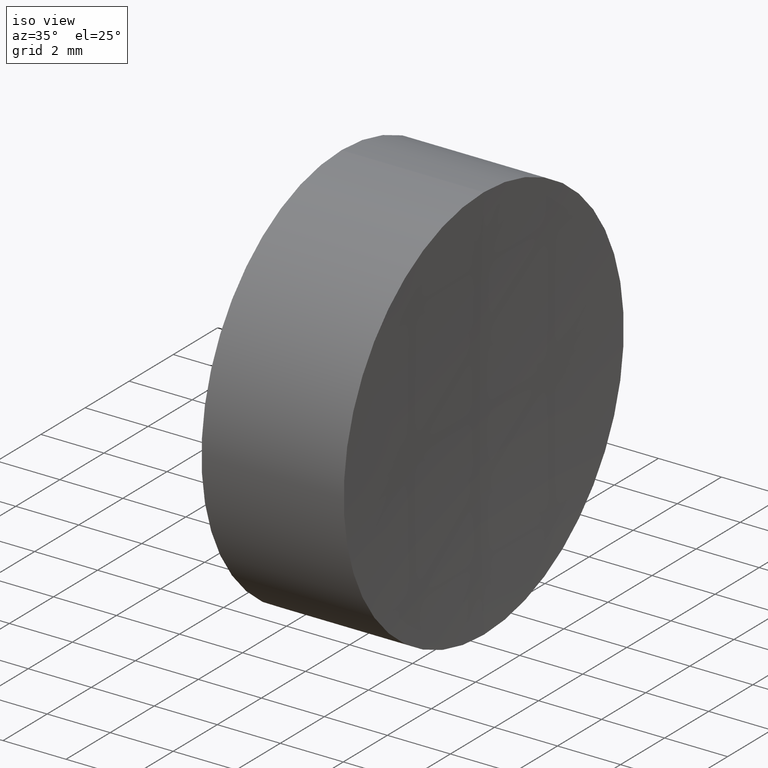
[diagram: clean part render]
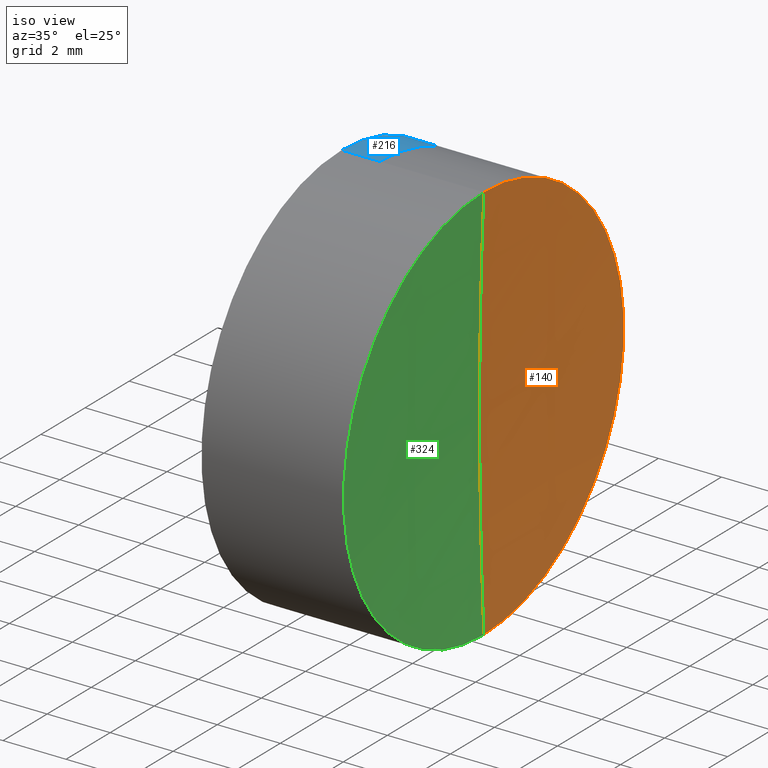
[diagram: same view with three faces highlighted in distinct colors, each labeled with its STEP entity id]
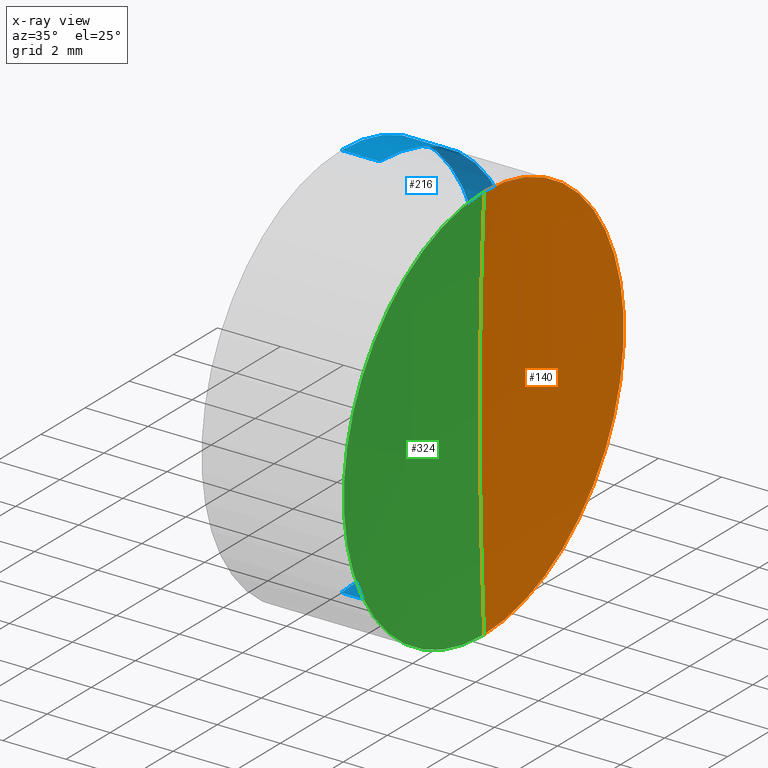
[diagram: x-ray of the same camera — body ghosted, the three highlighted faces saturated]
A machine part, iso view with three faces highlighted in distinct colors.
The next image is the same camera in x-ray (body ghosted, the three faces saturated) — at least one of them is partly hidden behind the body in this view.
Their STEP definitions:

[orange] entity #140 — the highlighted spherical surface has radius 151.71 mm.
#30 = VERTEX_POINT ( 'NONE', #48 ) ;
#39 = CIRCLE ( 'NONE', #122, 151.7099999999999800 ) ;
#42 = DIRECTION ( 'NONE',  ( 0.0000000000000000000, 1.000000000000000000, -0.0000000000000000000 ) ) ;
#48 = CARTESIAN_POINT ( 'NONE',  ( 26.85887678485193700, -7.776507174585457500E-016, 6.349999999999806900 ) ) ;
#57 = CARTESIAN_POINT ( 'NONE',  ( 26.72592517938957000, 0.0000000000000000000, -9.289558294932246800E-015 ) ) ;
#60 = SPHERICAL_SURFACE ( 'NONE', #172, 151.7099999999999800 ) ;
#82 = ORIENTED_EDGE ( 'NONE', *, *, #227, .F. ) ;
#101 = CARTESIAN_POINT ( 'NONE',  ( 26.85887678485193300, 0.0000000000000000000, 0.0000000000000000000 ) ) ;
#116 = CARTESIAN_POINT ( 'NONE',  ( 178.4359251793895600, 0.0000000000000000000, 0.0000000000000000000 ) ) ;
#122 = AXIS2_PLACEMENT_3D ( 'NONE', #317, #42, #260 ) ;
#124 = CIRCLE ( 'NONE', #190, 151.7099999999999800 ) ;
#127 = FACE_OUTER_BOUND ( 'NONE', #148, .T. ) ;
#133 = DIRECTION ( 'NONE',  ( 0.0000000000000000000, -1.000000000000000000, -1.224646799147353200E-016 ) ) ;
#136 = VERTEX_POINT ( 'NONE', #313 ) ;
#140 = ADVANCED_FACE ( 'NONE', ( #127 ), #60, .F. ) ;
#145 = DIRECTION ( 'NONE',  ( 0.0000000000000000000, 0.0000000000000000000, -1.000000000000000000 ) ) ;
#148 = EDGE_LOOP ( 'NONE', ( #288, #277, #82 ) ) ;
#149 = EDGE_CURVE ( 'NONE', #30, #136, #291, .T. ) ;
#172 = AXIS2_PLACEMENT_3D ( 'NONE', #116, #294, #145 ) ;
#190 = AXIS2_PLACEMENT_3D ( 'NONE', #253, #133, #336 ) ;
#199 = DIRECTION ( 'NONE',  ( -1.000000000000000000, -0.0000000000000000000, -0.0000000000000000000 ) ) ;
#207 = DIRECTION ( 'NONE',  ( 0.0000000000000000000, 0.0000000000000000000, 1.000000000000000000 ) ) ;
#214 = VERTEX_POINT ( 'NONE', #57 ) ;
#227 = EDGE_CURVE ( 'NONE', #136, #214, #39, .T. ) ;
#244 = EDGE_CURVE ( 'NONE', #30, #214, #124, .T. ) ;
#253 = CARTESIAN_POINT ( 'NONE',  ( 178.4359251793895600, 0.0000000000000000000, 0.0000000000000000000 ) ) ;
#260 = DIRECTION ( 'NONE',  ( 0.0000000000000000000, 0.0000000000000000000, 1.000000000000000000 ) ) ;
#277 = ORIENTED_EDGE ( 'NONE', *, *, #244, .T. ) ;
#288 = ORIENTED_EDGE ( 'NONE', *, *, #149, .F. ) ;
#291 = CIRCLE ( 'NONE', #312, 6.349999999999997000 ) ;
#294 = DIRECTION ( 'NONE',  ( -0.0000000000000000000, -1.000000000000000000, -0.0000000000000000000 ) ) ;
#312 = AXIS2_PLACEMENT_3D ( 'NONE', #101, #199, #207 ) ;
#313 = CARTESIAN_POINT ( 'NONE',  ( 26.85887678485193700, 0.0000000000000000000, -6.349999999999806900 ) ) ;
#317 = CARTESIAN_POINT ( 'NONE',  ( 178.4359251793895600, 0.0000000000000000000, 0.0000000000000000000 ) ) ;
#336 = DIRECTION ( 'NONE',  ( 0.0000000000000000000, 1.224646799147353200E-016, -1.000000000000000000 ) ) ;

[blue] entity #216 — the highlighted cylindrical surface (partial cylindrical patch) has radius 6.35 mm, axis along (-1, -0, -0).
#5 = AXIS2_PLACEMENT_3D ( 'NONE', #135, #143, #211 ) ;
#27 = DIRECTION ( 'NONE',  ( -1.000000000000000000, -0.0000000000000000000, -0.0000000000000000000 ) ) ;
#46 = ORIENTED_EDGE ( 'NONE', *, *, #89, .T. ) ;
#53 = ORIENTED_EDGE ( 'NONE', *, *, #278, .T. ) ;
#54 = VECTOR ( 'NONE', #269, 1000.000000000000000 ) ;
#55 = ORIENTED_EDGE ( 'NONE', *, *, #115, .F. ) ;
#62 = LINE ( 'NONE', #339, #54 ) ;
#68 = LINE ( 'NONE', #205, #105 ) ;
#73 = CYLINDRICAL_SURFACE ( 'NONE', #204, 6.350000000000004100 ) ;
#76 = ORIENTED_EDGE ( 'NONE', *, *, #246, .F. ) ;
#80 = DIRECTION ( 'NONE',  ( 0.0000000000000000000, 0.0000000000000000000, 1.000000000000000000 ) ) ;
#84 = VERTEX_POINT ( 'NONE', #153 ) ;
#89 = EDGE_CURVE ( 'NONE', #171, #137, #62, .T. ) ;
#93 = CIRCLE ( 'NONE', #5, 6.350000000000004100 ) ;
#99 = CARTESIAN_POINT ( 'NONE',  ( -0.8160621761658039000, 0.0000000000000000000, 0.0000000000000000000 ) ) ;
#105 = VECTOR ( 'NONE', #346, 1000.000000000000000 ) ;
#115 = EDGE_CURVE ( 'NONE', #303, #84, #68, .T. ) ;
#135 = CARTESIAN_POINT ( 'NONE',  ( 23.56072451241536600, 0.0000000000000000000, 0.0000000000000000000 ) ) ;
#137 = VERTEX_POINT ( 'NONE', #292 ) ;
#143 = DIRECTION ( 'NONE',  ( -1.000000000000000000, -0.0000000000000000000, -0.0000000000000000000 ) ) ;
#153 = CARTESIAN_POINT ( 'NONE',  ( 22.34371029263723700, -7.776507174585690200E-016, 6.350000000000005000 ) ) ;
#171 = VERTEX_POINT ( 'NONE', #333 ) ;
#175 = DIRECTION ( 'NONE',  ( 0.0000000000000000000, 0.0000000000000000000, 1.000000000000000000 ) ) ;
#184 = FACE_OUTER_BOUND ( 'NONE', #220, .T. ) ;
#194 = CIRCLE ( 'NONE', #200, 6.350000000000004100 ) ;
#200 = AXIS2_PLACEMENT_3D ( 'NONE', #315, #238, #80 ) ;
#204 = AXIS2_PLACEMENT_3D ( 'NONE', #99, #27, #175 ) ;
#205 = CARTESIAN_POINT ( 'NONE',  ( -0.8160621761658039000, 0.0000000000000000000, 6.350000000000004100 ) ) ;
#211 = DIRECTION ( 'NONE',  ( 0.0000000000000000000, 0.0000000000000000000, 1.000000000000000000 ) ) ;
#216 = ADVANCED_FACE ( 'NONE', ( #184 ), #73, .T. ) ;
#220 = EDGE_LOOP ( 'NONE', ( #53, #46, #76, #55 ) ) ;
#238 = DIRECTION ( 'NONE',  ( -1.000000000000000000, -0.0000000000000000000, -0.0000000000000000000 ) ) ;
#246 = EDGE_CURVE ( 'NONE', #84, #137, #194, .T. ) ;
#266 = CARTESIAN_POINT ( 'NONE',  ( 23.56072451241536600, 0.0000000000000000000, 6.350000000000004100 ) ) ;
#269 = DIRECTION ( 'NONE',  ( -1.000000000000000000, -0.0000000000000000000, -0.0000000000000000000 ) ) ;
#278 = EDGE_CURVE ( 'NONE', #303, #171, #93, .T. ) ;
#292 = CARTESIAN_POINT ( 'NONE',  ( 22.34371029263723700, 0.0000000000000000000, -6.349999999999997900 ) ) ;
#303 = VERTEX_POINT ( 'NONE', #266 ) ;
#315 = CARTESIAN_POINT ( 'NONE',  ( 22.34371029263723300, 0.0000000000000000000, 0.0000000000000000000 ) ) ;
#333 = CARTESIAN_POINT ( 'NONE',  ( 23.56072451241536600, 7.776507174585697100E-016, -6.350000000000004100 ) ) ;
#339 = CARTESIAN_POINT ( 'NONE',  ( -0.8160621761658039000, 7.776507174585697100E-016, -6.350000000000004100 ) ) ;
#346 = DIRECTION ( 'NONE',  ( -1.000000000000000000, -0.0000000000000000000, -0.0000000000000000000 ) ) ;

[green] entity #324 — the highlighted spherical surface has radius 151.71 mm.
#13 = CARTESIAN_POINT ( 'NONE',  ( 26.85887678485193300, 0.0000000000000000000, 0.0000000000000000000 ) ) ;
#20 = CIRCLE ( 'NONE', #109, 6.349999999999997000 ) ;
#24 = EDGE_CURVE ( 'NONE', #136, #30, #20, .T. ) ;
#29 = ORIENTED_EDGE ( 'NONE', *, *, #244, .F. ) ;
#30 = VERTEX_POINT ( 'NONE', #48 ) ;
#39 = CIRCLE ( 'NONE', #122, 151.7099999999999800 ) ;
#42 = DIRECTION ( 'NONE',  ( 0.0000000000000000000, 1.000000000000000000, -0.0000000000000000000 ) ) ;
#48 = CARTESIAN_POINT ( 'NONE',  ( 26.85887678485193700, -7.776507174585457500E-016, 6.349999999999806900 ) ) ;
#50 = DIRECTION ( 'NONE',  ( 0.0000000000000000000, 0.0000000000000000000, 1.000000000000000000 ) ) ;
#57 = CARTESIAN_POINT ( 'NONE',  ( 26.72592517938957000, 0.0000000000000000000, -9.289558294932246800E-015 ) ) ;
#72 = FACE_OUTER_BOUND ( 'NONE', #164, .T. ) ;
#74 = DIRECTION ( 'NONE',  ( 0.0000000000000000000, 0.0000000000000000000, -1.000000000000000000 ) ) ;
#75 = DIRECTION ( 'NONE',  ( -1.000000000000000000, -0.0000000000000000000, -0.0000000000000000000 ) ) ;
#109 = AXIS2_PLACEMENT_3D ( 'NONE', #13, #75, #50 ) ;
#122 = AXIS2_PLACEMENT_3D ( 'NONE', #317, #42, #260 ) ;
#124 = CIRCLE ( 'NONE', #190, 151.7099999999999800 ) ;
#133 = DIRECTION ( 'NONE',  ( 0.0000000000000000000, -1.000000000000000000, -1.224646799147353200E-016 ) ) ;
#136 = VERTEX_POINT ( 'NONE', #313 ) ;
#156 = AXIS2_PLACEMENT_3D ( 'NONE', #254, #326, #74 ) ;
#164 = EDGE_LOOP ( 'NONE', ( #29, #181, #267 ) ) ;
#181 = ORIENTED_EDGE ( 'NONE', *, *, #24, .F. ) ;
#190 = AXIS2_PLACEMENT_3D ( 'NONE', #253, #133, #336 ) ;
#214 = VERTEX_POINT ( 'NONE', #57 ) ;
#227 = EDGE_CURVE ( 'NONE', #136, #214, #39, .T. ) ;
#244 = EDGE_CURVE ( 'NONE', #30, #214, #124, .T. ) ;
#253 = CARTESIAN_POINT ( 'NONE',  ( 178.4359251793895600, 0.0000000000000000000, 0.0000000000000000000 ) ) ;
#254 = CARTESIAN_POINT ( 'NONE',  ( 178.4359251793895600, 0.0000000000000000000, 0.0000000000000000000 ) ) ;
#260 = DIRECTION ( 'NONE',  ( 0.0000000000000000000, 0.0000000000000000000, 1.000000000000000000 ) ) ;
#267 = ORIENTED_EDGE ( 'NONE', *, *, #227, .T. ) ;
#313 = CARTESIAN_POINT ( 'NONE',  ( 26.85887678485193700, 0.0000000000000000000, -6.349999999999806900 ) ) ;
#317 = CARTESIAN_POINT ( 'NONE',  ( 178.4359251793895600, 0.0000000000000000000, 0.0000000000000000000 ) ) ;
#324 = ADVANCED_FACE ( 'NONE', ( #72 ), #331, .F. ) ;
#326 = DIRECTION ( 'NONE',  ( -0.0000000000000000000, -1.000000000000000000, -0.0000000000000000000 ) ) ;
#331 = SPHERICAL_SURFACE ( 'NONE', #156, 151.7099999999999800 ) ;
#336 = DIRECTION ( 'NONE',  ( 0.0000000000000000000, 1.224646799147353200E-016, -1.000000000000000000 ) ) ;